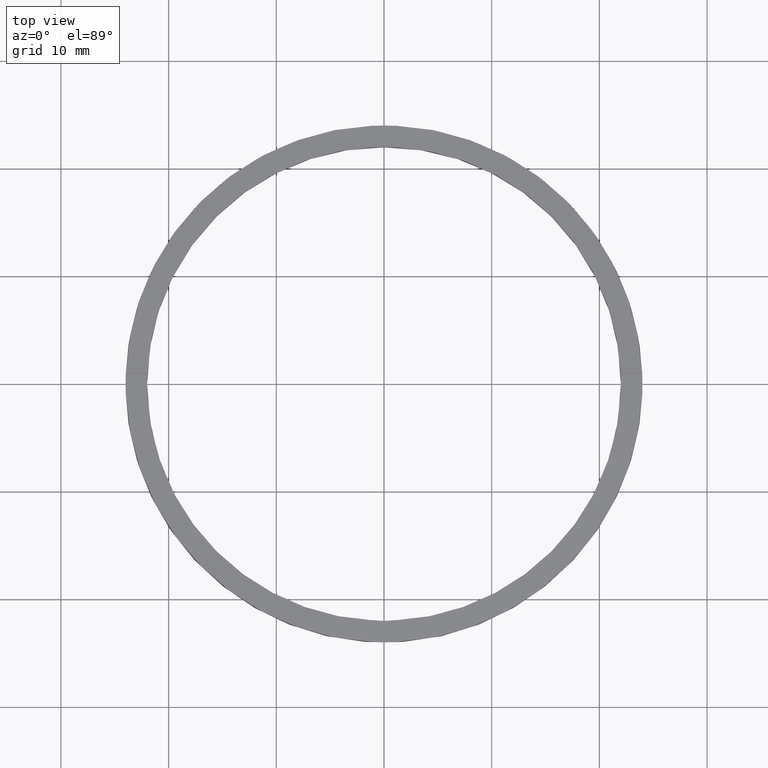
[diagram: clean part render]
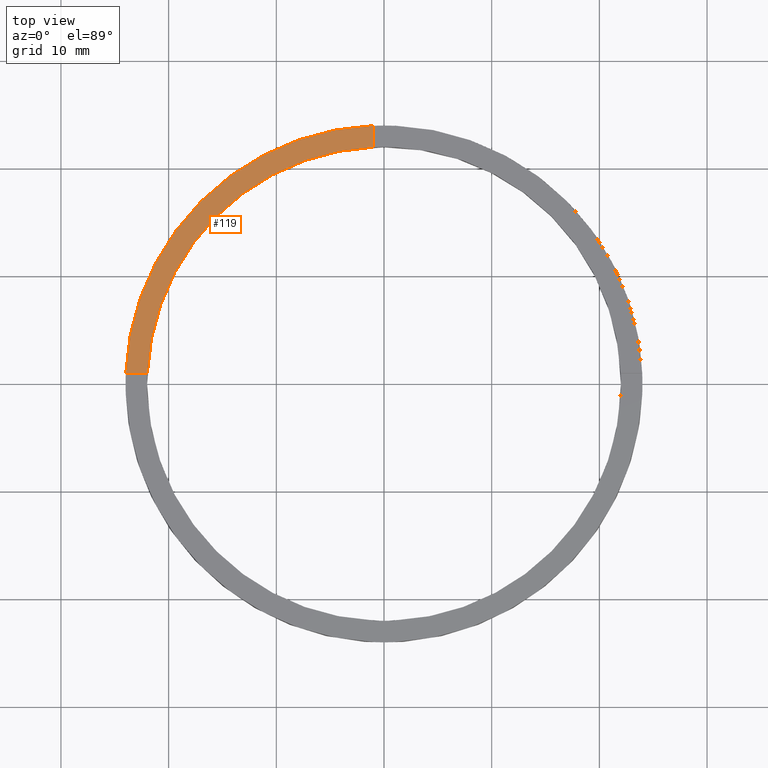
[diagram: same view with one face highlighted and labeled with its STEP entity id]
A machine part, top view. The second image highlights one B-rep face of the part: STEP entity #119.
In plain terms, the highlighted planar face has unit normal (0, 0, 1).
Its self-contained STEP definition (entity closure, byte-faithful):
#36 = ORIENTED_EDGE ( 'NONE', *, *, #616, .T. ) ;
#48 = AXIS2_PLACEMENT_3D ( 'NONE', #692, #708, #199 ) ;
#51 = DIRECTION ( 'NONE',  ( 1.000000000000000000, 0.000000000000000000, 0.000000000000000000 ) ) ;
#57 = CARTESIAN_POINT ( 'NONE',  ( -23.97915761656360445, 0.9999999999999742428, 2.500000000000000000 ) ) ;
#61 = LINE ( 'NONE', #108, #315 ) ;
#68 = EDGE_LOOP ( 'NONE', ( #240, #36, #239, #534 ) ) ;
#91 = LINE ( 'NONE', #673, #637 ) ;
#103 = EDGE_CURVE ( 'NONE', #175, #153, #61, .T. ) ;
#108 = CARTESIAN_POINT ( 'NONE',  ( -1.000000000000025979, 14.00000000000000355, 2.500000000000000000 ) ) ;
#117 = PLANE ( 'NONE',  #48 ) ;
#119 = ADVANCED_FACE ( 'NONE', ( #575 ), #117, .T. ) ;
#134 = DIRECTION ( 'NONE',  ( 0.000000000000000000, 0.000000000000000000, 1.000000000000000000 ) ) ;
#153 = VERTEX_POINT ( 'NONE', #614 ) ;
#160 = EDGE_CURVE ( 'NONE', #153, #384, #359, .T. ) ;
#175 = VERTEX_POINT ( 'NONE', #536 ) ;
#181 = EDGE_CURVE ( 'NONE', #384, #603, #91, .T. ) ;
#199 = DIRECTION ( 'NONE',  ( 1.000000000000000000, 0.000000000000000000, -0.000000000000000000 ) ) ;
#231 = DIRECTION ( 'NONE',  ( 0.000000000000000000, 0.000000000000000000, 1.000000000000000000 ) ) ;
#239 = ORIENTED_EDGE ( 'NONE', *, *, #181, .F. ) ;
#240 = ORIENTED_EDGE ( 'NONE', *, *, #103, .F. ) ;
#285 = DIRECTION ( 'NONE',  ( 1.000000000000000000, 0.000000000000000000, 0.000000000000000000 ) ) ;
#315 = VECTOR ( 'NONE', #687, 1000.000000000000000 ) ;
#359 = CIRCLE ( 'NONE', #494, 22.00000000000000000 ) ;
#381 = CIRCLE ( 'NONE', #684, 24.00000000000000355 ) ;
#384 = VERTEX_POINT ( 'NONE', #636 ) ;
#494 = AXIS2_PLACEMENT_3D ( 'NONE', #606, #134, #285 ) ;
#534 = ORIENTED_EDGE ( 'NONE', *, *, #160, .F. ) ;
#536 = CARTESIAN_POINT ( 'NONE',  ( -1.000000000000025535, 23.97915761656360090, 2.500000000000000000 ) ) ;
#575 = FACE_OUTER_BOUND ( 'NONE', #68, .T. ) ;
#603 = VERTEX_POINT ( 'NONE', #57 ) ;
#606 = CARTESIAN_POINT ( 'NONE',  ( 0.000000000000000000, 0.000000000000000000, 2.500000000000000000 ) ) ;
#614 = CARTESIAN_POINT ( 'NONE',  ( -1.000000000000025535, 21.97726097583590388, 2.500000000000000000 ) ) ;
#616 = EDGE_CURVE ( 'NONE', #175, #603, #381, .T. ) ;
#628 = DIRECTION ( 'NONE',  ( -1.000000000000000000, -1.734723475976806848E-16, 0.000000000000000000 ) ) ;
#636 = CARTESIAN_POINT ( 'NONE',  ( -21.97726097583591098, 0.9999999999999744649, 2.500000000000000000 ) ) ;
#637 = VECTOR ( 'NONE', #628, 1000.000000000000000 ) ;
#671 = CARTESIAN_POINT ( 'NONE',  ( 0.000000000000000000, 0.000000000000000000, 2.500000000000000000 ) ) ;
#673 = CARTESIAN_POINT ( 'NONE',  ( -14.00000000000019007, 0.9999999999999759082, 2.500000000000000000 ) ) ;
#684 = AXIS2_PLACEMENT_3D ( 'NONE', #671, #231, #51 ) ;
#687 = DIRECTION ( 'NONE',  ( -0.000000000000000000, -1.000000000000000000, -0.000000000000000000 ) ) ;
#692 = CARTESIAN_POINT ( 'NONE',  ( 0.000000000000000000, 0.000000000000000000, 2.500000000000000000 ) ) ;
#708 = DIRECTION ( 'NONE',  ( 0.000000000000000000, 0.000000000000000000, 1.000000000000000000 ) ) ;